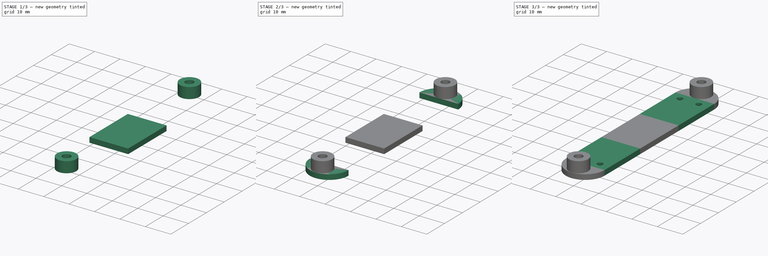
[diagram: build sequence overview — one tinted view per stage of 3, left to right]
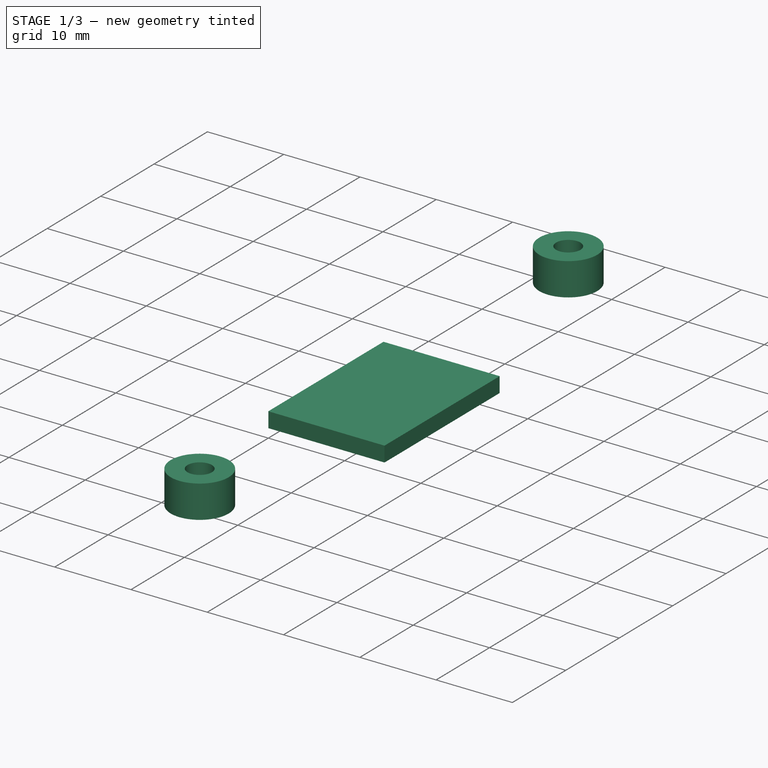
[diagram: stage 1 of 3 — iso view after this stage's code; geometry added in this stage tinted green]
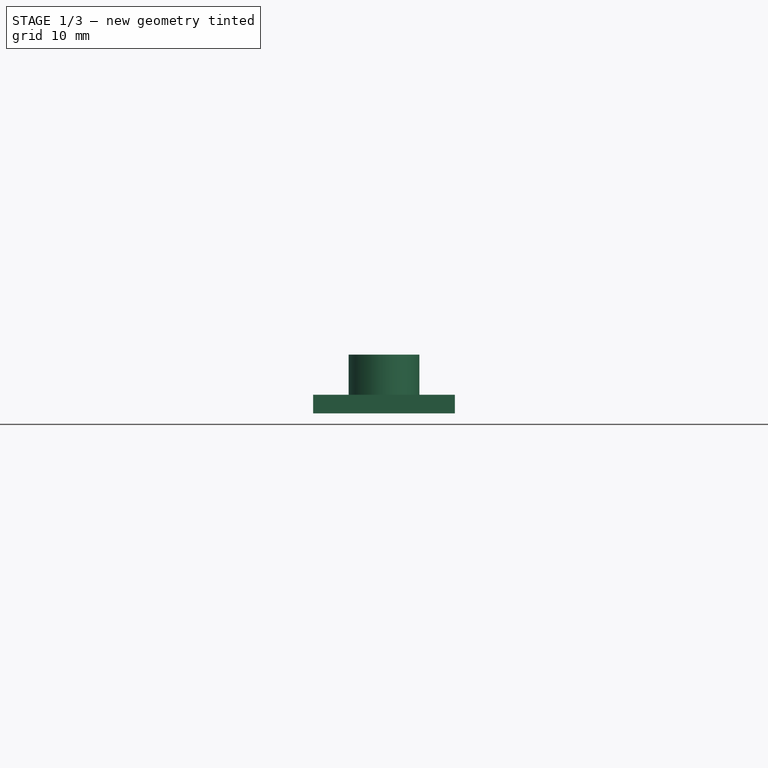
[diagram: stage 1 of 3 — front view after this stage's code; geometry added in this stage tinted green]
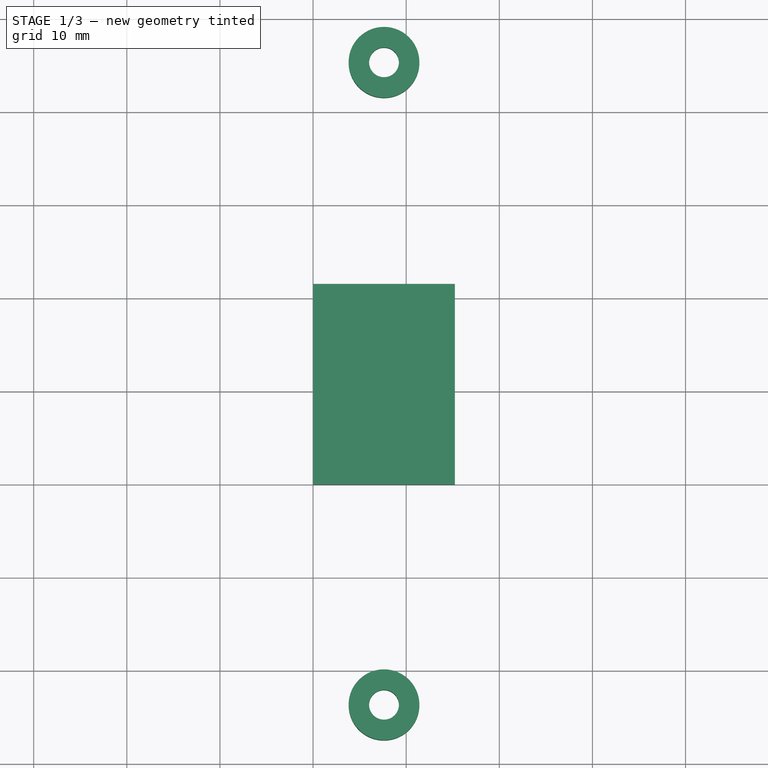
[diagram: stage 1 of 3 — top view after this stage's code; geometry added in this stage tinted green]
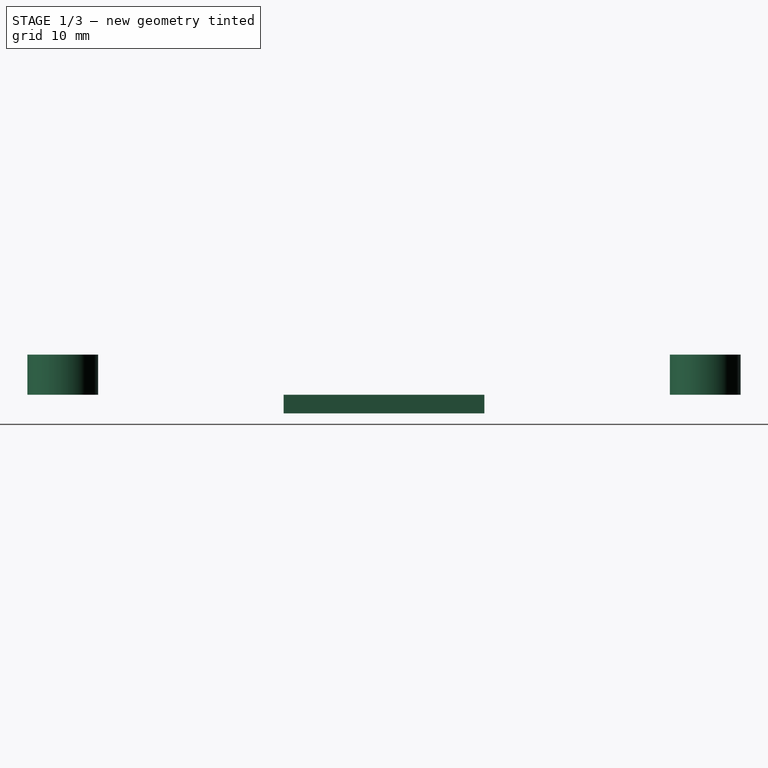
[diagram: stage 1 of 3 — right view after this stage's code; geometry added in this stage tinted green]
FCSTD DOCUMENT  (FreeCAD 0.16R6706 (Git))
Label: TopPlateBlank_1
License: All rights reserved
LicenseURL: http://en.wikipedia.org/wiki/All_rights_reserved
objects: Sketcher::SketchObject×5, PartDesign::Pad×4, PartDesign::Chamfer×3
note: 16 computed .brp shape members not serialized (recipe doc carries the construction recipe); baked Part::Feature solids carry a one-line shape summary decoded from their .brp

FEATURE [PartDesign::Pad] Pad002
  Length = 2
  Length2 = 100
  Sketch = -> Sketch
  Type = 0
FEATURE [Sketcher::SketchObject] Sketch004
  Placement = pos=(0,0,2) rot=(0,0,1;0rad)
  sketch-geometry (4):
    g0: Circle CenterX=7.616 CenterY=45.28 CenterZ=0 NormalX=0 NormalY=0 NormalZ=1 Radius=3.8
    g1: Circle CenterX=7.616 CenterY=45.28 CenterZ=0 NormalX=0 NormalY=0 NormalZ=1 Radius=1.6
    g2: Circle CenterX=7.616 CenterY=-23.72 CenterZ=0 NormalX=0 NormalY=0 NormalZ=1 Radius=3.8
    g3: Circle CenterX=7.616 CenterY=-23.72 CenterZ=0 NormalX=0 NormalY=0 NormalZ=1 Radius=1.6
  constraints (10):
    c: Coincident(g1,g0)
    c: Coincident(g3,g2)
    c: Radius(g3) = 1.6
    c: Radius(g2) = 3.8
    c: DistanceX(g-1,g2) = 7.616
    c: Radius(g1) = 1.6
    c: Radius(g0) = 3.8
    c: DistanceX(g-1,g0) = 7.616
    c: DistanceY(g-1,g0) = 45.28
    c: DistanceY(g2,g-1) = 23.72
FEATURE [PartDesign::Pad] Pad003
  Length = 4.3
  Length2 = 100
  Placement = pos=(0,0,2) rot=(0,0,1;0rad)
  Sketch = -> Sketch004
  Type = 0
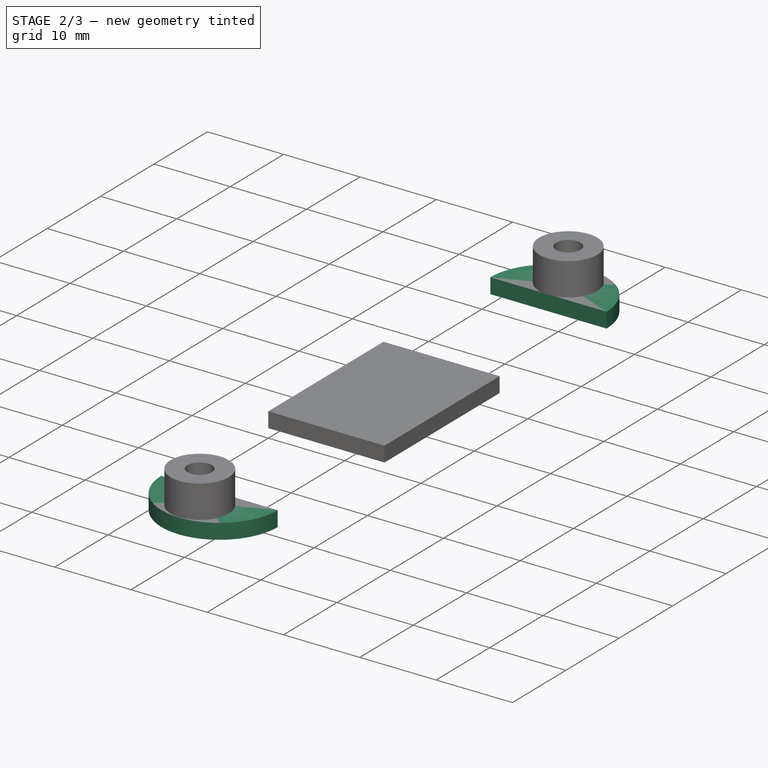
[diagram: stage 2 of 3 — iso view after this stage's code; geometry added in this stage tinted green]
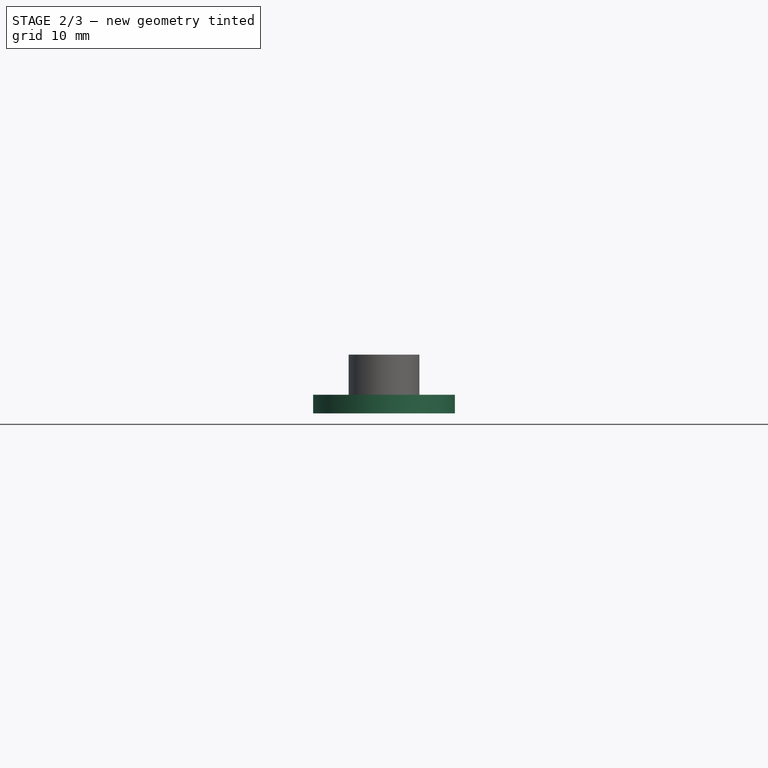
[diagram: stage 2 of 3 — front view after this stage's code; geometry added in this stage tinted green]
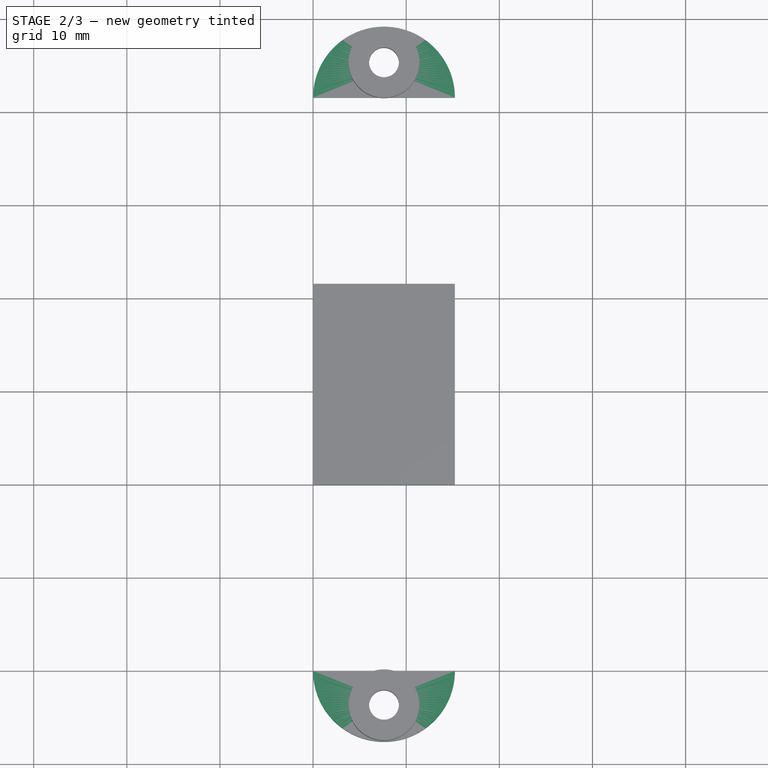
[diagram: stage 2 of 3 — top view after this stage's code; geometry added in this stage tinted green]
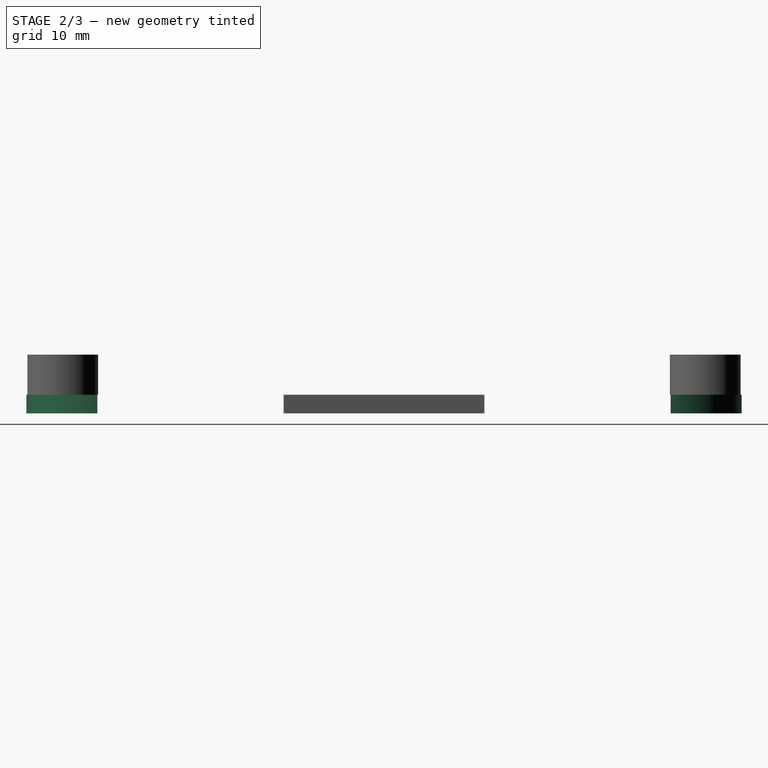
[diagram: stage 2 of 3 — right view after this stage's code; geometry added in this stage tinted green]
FEATURE [Sketcher::SketchObject] Sketch
  sketch-geometry (4):
    g0: LineSegment StartX=0 StartY=0 StartZ=0 EndX=15.232 EndY=0 EndZ=0
    g1: LineSegment StartX=15.232 StartY=0 StartZ=0 EndX=15.232 EndY=21.56 EndZ=0
    g2: LineSegment StartX=15.232 StartY=21.56 StartZ=0 EndX=0 EndY=21.56 EndZ=0
    g3: LineSegment StartX=0 StartY=21.56 StartZ=0 EndX=0 EndY=0 EndZ=0
  constraints (11):
    c: Coincident(g0,g1)
    c: Coincident(g1,g2)
    c: Coincident(g2,g3)
    c: Coincident(g3,g0)
    c: Horizontal(g0)
    c: Horizontal(g2)
    c: Vertical(g1)
    c: Vertical(g3)
    c: Coincident(g0,g-1)
    c: DistanceX(g-1,g0) = 15.232
    c: DistanceY(g-1,g2) = 21.56
FEATURE [Sketcher::SketchObject] Sketch001
  sketch-geometry (12):
    g0: LineSegment StartX=0 StartY=0 StartZ=0 EndX=15.232 EndY=0 EndZ=0
    g1: LineSegment StartX=15.232 StartY=0 StartZ=0 EndX=15.232 EndY=-20 EndZ=0
    g2: LineSegment StartX=15.232 StartY=-20 StartZ=0 EndX=0 EndY=-20 EndZ=0
    g3: LineSegment StartX=0 StartY=-20 StartZ=0 EndX=0 EndY=0 EndZ=0
    g4: Circle CenterX=3.8995 CenterY=-16.9419 CenterZ=0 NormalX=0 NormalY=0 NormalZ=1 Radius=1.1
    g5: Circle CenterX=11.3325 CenterY=-16.9419 CenterZ=0 NormalX=0 NormalY=0 NormalZ=1 Radius=1.1
    g6: LineSegment StartX=0 StartY=21.56 StartZ=0 EndX=15.232 EndY=21.56 EndZ=0
    g7: LineSegment StartX=15.232 StartY=21.56 StartZ=0 EndX=15.232 EndY=41.56 EndZ=0
    g8: LineSegment StartX=15.232 StartY=41.56 StartZ=0 EndX=0 EndY=41.56 EndZ=0
    g9: LineSegment StartX=0 StartY=41.56 StartZ=0 EndX=0 EndY=21.56 EndZ=0
    g10: Circle CenterX=3.8995 CenterY=38.5019 CenterZ=0 NormalX=0 NormalY=0 NormalZ=1 Radius=1.1
    g11: Circle CenterX=11.3325 CenterY=38.5019 CenterZ=0 NormalX=0 NormalY=0 NormalZ=1 Radius=1.1
  constraints (34):
    c: Coincident(g0,g1)
    c: Coincident(g1,g2)
    c: Coincident(g2,g3)
    c: Coincident(g3,g0)
    c: Horizontal(g0)
    c: Horizontal(g2)
    c: Vertical(g1)
    c: Vertical(g3)
    c: DistanceX(g-1,g0) = 15.232
    c: DistanceY(g2,g-1) = 20
    c: DistanceY(g4,g-1) = 16.9419
    c: Radius(g4) = 1.1
    c: DistanceY(g5,g-1) = 16.9419
    c: Radius(g5) = 1.1
    c: Coincident(g6,g7)
    c: Coincident(g7,g8)
    c: Coincident(g8,g9)
    c: Coincident(g9,g6)
    c: Horizontal(g6)
    c: Horizontal(g8)
    c: Vertical(g7)
    c: Vertical(g9)
    c: PointOnObject(g6,g-2)
    c: DistanceX(g6,g6) = 15.232
    c: DistanceY(g6,g7) = 20
    c: Radius(g11) = 1.1
    c: Radius(g10) = 1.1
    c: DistanceY(g-1,g10) = 38.5019
    c: DistanceY(g-1,g11) = 38.5019
    c: DistanceX(g6,g10) = 3.8995
    c: DistanceX(g-1,g11) = 11.3325
    c: DistanceX(g-1,g4) = 3.8995
    c: DistanceX(g-1,g5) = 11.3325
    c: DistanceY(g-1,g6) = 21.56
FEATURE [Sketcher::SketchObject] Sketch002
  sketch-geometry (6):
    g0: ArcOfCircle CenterX=7.616 CenterY=41.56 CenterZ=0 NormalX=0 NormalY=0 NormalZ=1 Radius=7.616 StartAngle=0 EndAngle=3.14159
    g1: ArcOfCircle CenterX=7.616 CenterY=-20 CenterZ=0 NormalX=0 NormalY=0 NormalZ=1 Radius=7.616 StartAngle=3.14159 EndAngle=6.28319
    g2: Circle CenterX=7.616 CenterY=45.28 CenterZ=0 NormalX=0 NormalY=0 NormalZ=1 Radius=1.6
    g3: Circle CenterX=7.616 CenterY=-23.72 CenterZ=0 NormalX=0 NormalY=0 NormalZ=1 Radius=1.6
    g4: LineSegment StartX=0 StartY=-20 StartZ=0 EndX=15.232 EndY=-20 EndZ=0
    g5: LineSegment StartX=0 StartY=41.56 StartZ=0 EndX=15.232 EndY=41.56 EndZ=0
  constraints (20):
    c: DistanceY(g-1,g0) = 41.56
    c: DistanceY(g-1,g0) = 41.56
    c: DistanceY(g-1,g0) = 41.56
    c: DistanceX(g-1,g0) = 7.616
    c: DistanceY(g1,g-1) = 20
    c: DistanceX(g-1,g1) = 7.616
    c: Radius(g2) = 1.6
    c: DistanceY(g-1,g2) = 45.28
    c: DistanceX(g-1,g2) = 7.616
    c: DistanceX(g1,g3) = 7.616
    c: Radius(g3) = 1.6
    c: DistanceY(g3,g-1) = 23.72
    c: Coincident(g4,g1)
    c: Coincident(g4,g1)
    c: Horizontal(g4)
    c: Coincident(g5,g0)
    c: Coincident(g5,g0)
    c: DistanceX(g-1,g0) = 0
    c: DistanceX(g-1,g1) = 0
    c: DistanceY(g1,g1) = 0
FEATURE [PartDesign::Pad] Pad
  Length = 2
  Length2 = 100
  Sketch = -> Sketch002
  Type = 0
FEATURE [Sketcher::SketchObject] Sketch003
  sketch-geometry (12):
    g0: Circle CenterX=2.3099 CenterY=7.53 CenterZ=0 NormalX=0 NormalY=0 NormalZ=1 Radius=1.35
    g1: Circle CenterX=2.3099 CenterY=14.03 CenterZ=0 NormalX=0 NormalY=0 NormalZ=1 Radius=1.35
    g2: Circle CenterX=2.3099 CenterY=10.78 CenterZ=0 NormalX=0 NormalY=0 NormalZ=1 Radius=1.35
    g3: Circle CenterX=5.2399 CenterY=14.03 CenterZ=0 NormalX=0 NormalY=0 NormalZ=1 Radius=1.35
    g4: Circle CenterX=5.2399 CenterY=10.78 CenterZ=0 NormalX=0 NormalY=0 NormalZ=1 Radius=1.35
    g5: Circle CenterX=5.2399 CenterY=7.53 CenterZ=0 NormalX=0 NormalY=0 NormalZ=1 Radius=1.35
    g6: Circle CenterX=10 CenterY=14.03 CenterZ=0 NormalX=0 NormalY=0 NormalZ=1 Radius=1.35
    g7: Circle CenterX=10 CenterY=10.78 CenterZ=0 NormalX=0 NormalY=0 NormalZ=1 Radius=1.35
    g8: Circle CenterX=10 CenterY=7.53 CenterZ=0 NormalX=0 NormalY=0 NormalZ=1 Radius=1.35
    g9: Circle CenterX=12.93 CenterY=7.53 CenterZ=0 NormalX=0 NormalY=0 NormalZ=1 Radius=1.35
    g10: Circle CenterX=12.93 CenterY=10.78 CenterZ=0 NormalX=0 NormalY=0 NormalZ=1 Radius=1.35
    g11: Circle CenterX=12.93 CenterY=14.03 CenterZ=0 NormalX=0 NormalY=0 NormalZ=1 Radius=1.35
  constraints (36):
    c: DistanceX(g-1,g0) = 2.3099
    c: Radius(g0) = 1.35
    c: DistanceY(g0,g2) = 3.25
    c: Radius(g2) = 1.35
    c: DistanceX(g0,g2) = 0
    c: DistanceX(g2,g1) = 0
    c: Radius(g1) = 1.35
    c: DistanceY(g2,g1) = 3.25
    c: DistanceY(g-1,g2) = 10.78
    c: Radius(g5) = 1.35
    c: Radius(g4) = 1.35
    c: Radius(g3) = 1.35
    c: DistanceX(g4,g5) = 0
    c: DistanceX(g3,g4) = 0
    c: DistanceY(g4,g3) = 3.25
    c: DistanceY(g5,g4) = 3.25
    c: DistanceX(g0,g5) = 2.93
    c: DistanceY(g2,g4) = 0
    c: Radius(g11) = 1.35
    c: Radius(g6) = 1.35
    c: Radius(g7) = 1.35
    c: Radius(g10) = 1.35
    c: Radius(g8) = 1.35
    c: Radius(g9) = 1.35
    c: DistanceX(g9,g10) = 0
    c: DistanceX(g11,g10) = 0
    c: DistanceY(g10,g11) = 3.25
    c: DistanceY(g9,g10) = 3.25
    c: DistanceX(g8,g7) = 0
    c: DistanceX(g7,g6) = 0
    c: DistanceY(g7,g6) = 3.25
    c: DistanceY(g8,g7) = 3.25
    c: DistanceY(g9,g8) = 0
    c: DistanceY(g-1,g7) = 10.78
    c: DistanceX(g-1,g7) = 10
    c: DistanceX(g7,g10) = 2.93
FEATURE [PartDesign::Chamfer] Chamfer
  Base = -> Pad [Edge8]
  Size = 1.65
FEATURE [PartDesign::Chamfer] Chamfer003
  Base = -> Chamfer [Edge19]
  Size = 1.65
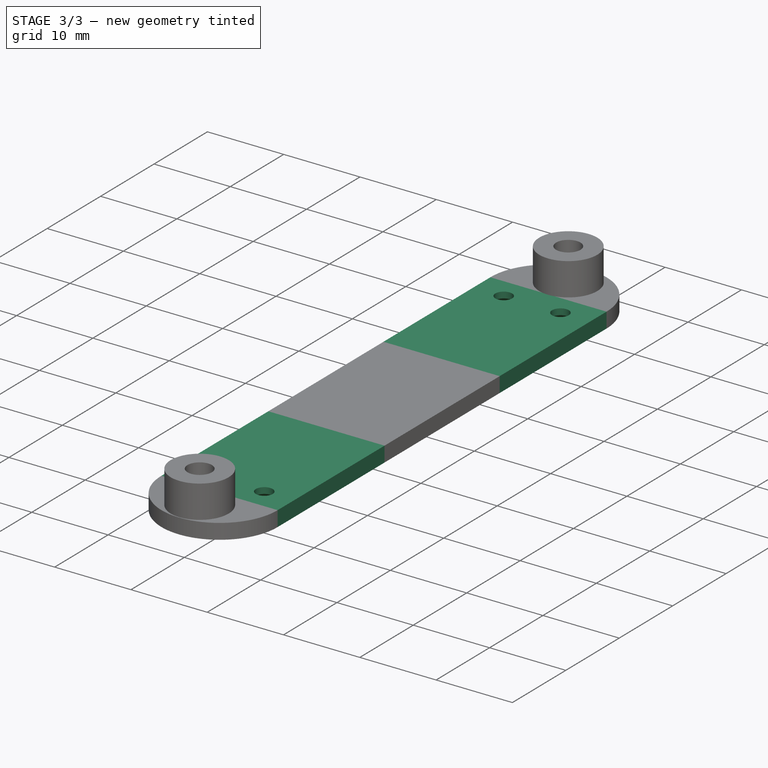
[diagram: stage 3 of 3 — iso view after this stage's code; geometry added in this stage tinted green]
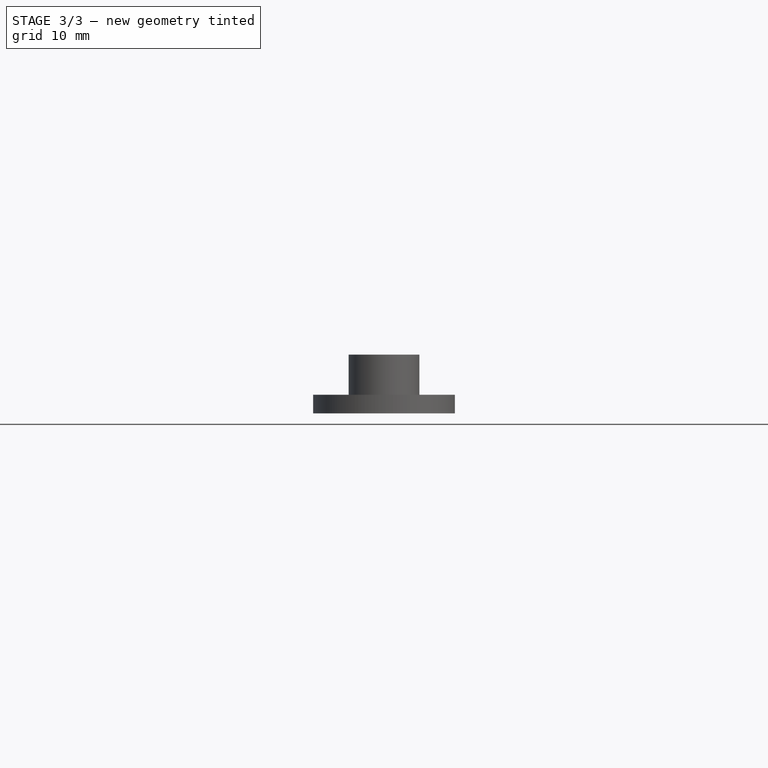
[diagram: stage 3 of 3 — front view after this stage's code; geometry added in this stage tinted green]
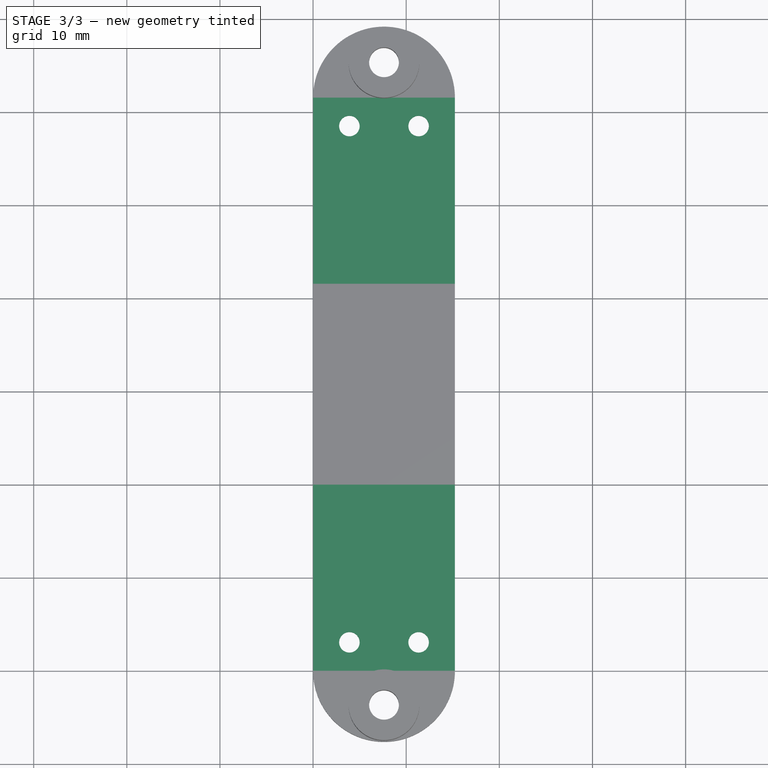
[diagram: stage 3 of 3 — top view after this stage's code; geometry added in this stage tinted green]
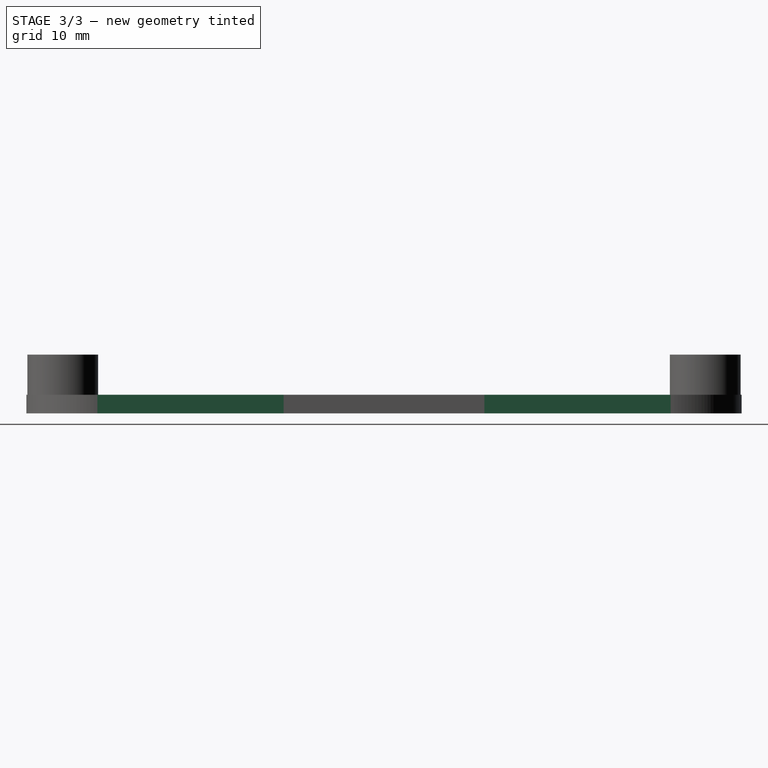
[diagram: stage 3 of 3 — right view after this stage's code; geometry added in this stage tinted green]
FEATURE [PartDesign::Pad] Pad001
  Length = 2
  Length2 = 100
  Sketch = -> Sketch001
  Type = 0
FEATURE [PartDesign::Chamfer] Chamfer002
  Base = -> Pad001 [Edge35,Edge32,Edge17,Edge14]
  Size = 1.2
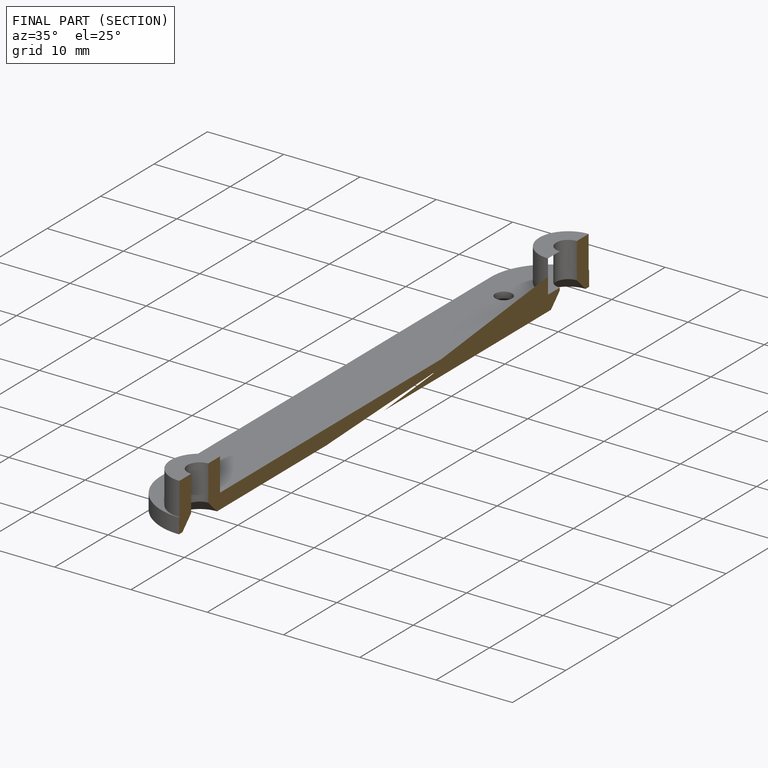
[diagram: finished part — half-section view (interior)]
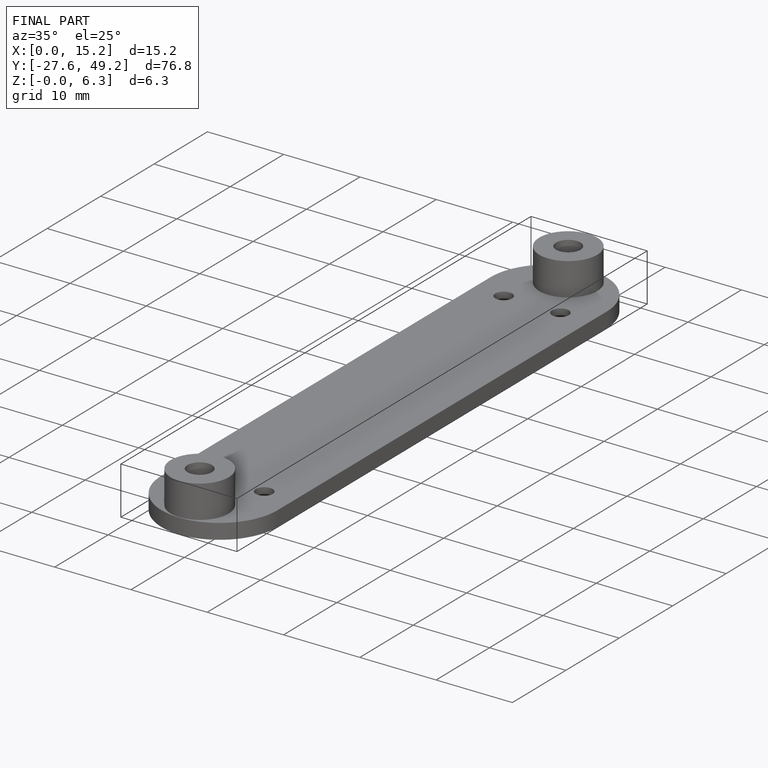
[diagram: finished part — iso view with bounding-box wireframe]
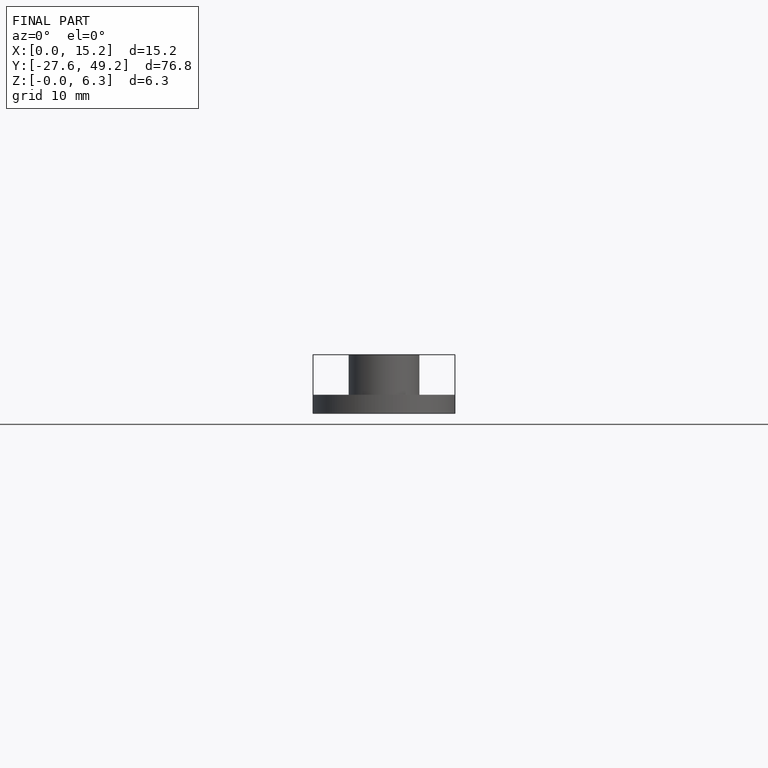
[diagram: finished part — front view with bounding-box wireframe]
